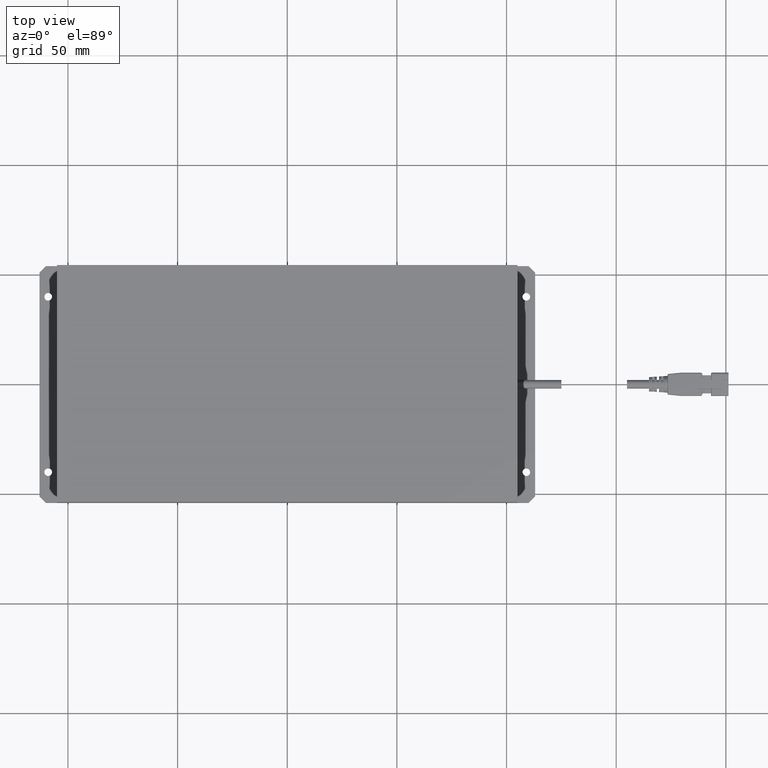
[diagram: clean part render]
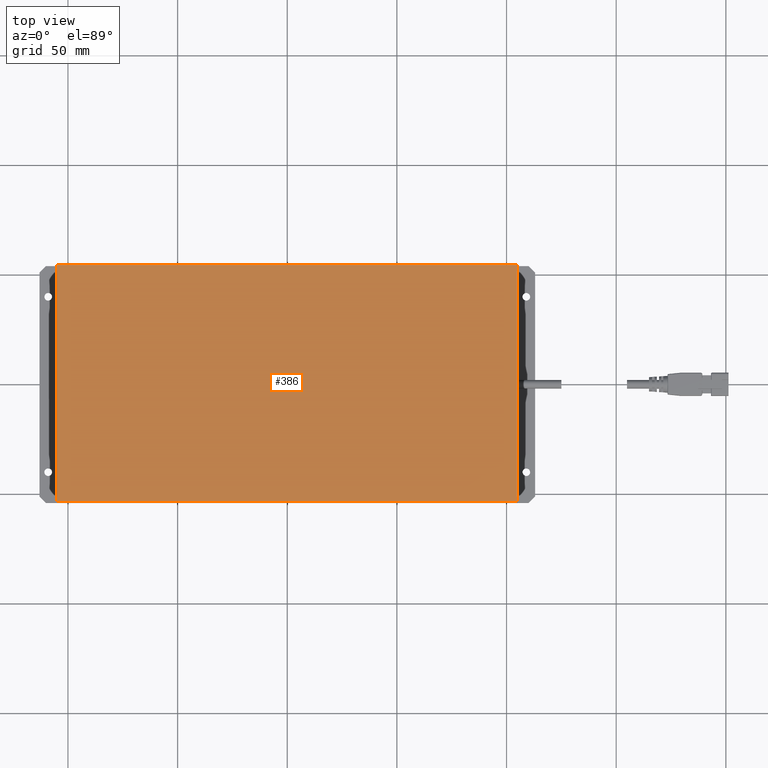
[diagram: same view with one face highlighted and labeled with its STEP entity id]
A machine part, top view. The second image highlights one B-rep face of the part: STEP entity #386.
In plain terms, the highlighted planar face has unit normal (0, 0, 1).
Its self-contained STEP definition (entity closure, byte-faithful):
#386=ADVANCED_FACE('0:300367',(#921),#922,.T.);
#921=FACE_OUTER_BOUND('',#1612,.T.);
#922=PLANE('',#1613);
#1612=EDGE_LOOP('',(#2924,#2925,#2926,#2927));
#1613=AXIS2_PLACEMENT_3D('',#2928,#2929,#2930);
#2924=ORIENTED_EDGE('',*,*,#4601,.T.);
#2925=ORIENTED_EDGE('',*,*,#4602,.T.);
#2926=ORIENTED_EDGE('',*,*,#4603,.T.);
#2927=ORIENTED_EDGE('',*,*,#4604,.F.);
#2928=CARTESIAN_POINT('',(4.85722573273506E-17,5.72458747072346E-17,0.0289));
#2929=DIRECTION('',(1.20301288046204E-29,3.71352796603441E-15,1.0));
#2930=DIRECTION('',(-1.0,3.21964677141295E-15,7.388047822602E-32));
#4601=EDGE_CURVE('0:300877',#5444,#5445,#5446,.T.);
#4602=EDGE_CURVE('0:300907',#5445,#5447,#5448,.T.);
#4603=EDGE_CURVE('0:300607',#5447,#5449,#5450,.T.);
#4604=EDGE_CURVE('0:300844',#5444,#5449,#5451,.T.);
#5444=VERTEX_POINT('',#6663);
#5445=VERTEX_POINT('',#6664);
#5446=LINE('',#6665,#6666);
#5447=VERTEX_POINT('',#6667);
#5448=LINE('',#6668,#6669);
#5449=VERTEX_POINT('',#6670);
#5450=LINE('',#6671,#6672);
#5451=LINE('',#6673,#6674);
#6663=CARTESIAN_POINT('',(0.105,0.0539999999999997,0.0288999999999998));
#6664=CARTESIAN_POINT('',(-0.105,0.0540000000000004,0.0288999999999998));
#6665=CARTESIAN_POINT('',(0.105,0.0539999999999997,0.0288999999999998));
#6666=VECTOR('',#8069,1.0);
#6667=CARTESIAN_POINT('',(-0.105,-0.0539999999999996,0.0289000000000002));
#6668=CARTESIAN_POINT('',(-0.105,0.0540000000000004,0.0288999999999998));
#6669=VECTOR('',#8070,1.0);
#6670=CARTESIAN_POINT('',(0.105,-0.0540000000000003,0.0289000000000002));
#6671=CARTESIAN_POINT('',(-0.105,-0.0539999999999996,0.0289000000000002));
#6672=VECTOR('',#8071,1.0);
#6673=CARTESIAN_POINT('',(0.105,0.0539999999999997,0.0288999999999998));
#6674=VECTOR('',#8072,1.0);
#8069=DIRECTION('',(-1.0,3.21964677141295E-15,0.0));
#8070=DIRECTION('',(-3.21964677141295E-15,-1.0,3.71352796603441E-15));
#8071=DIRECTION('',(1.0,-3.21964677141295E-15,0.0));
#8072=DIRECTION('',(-3.21964677141295E-15,-1.0,3.71352796603441E-15));